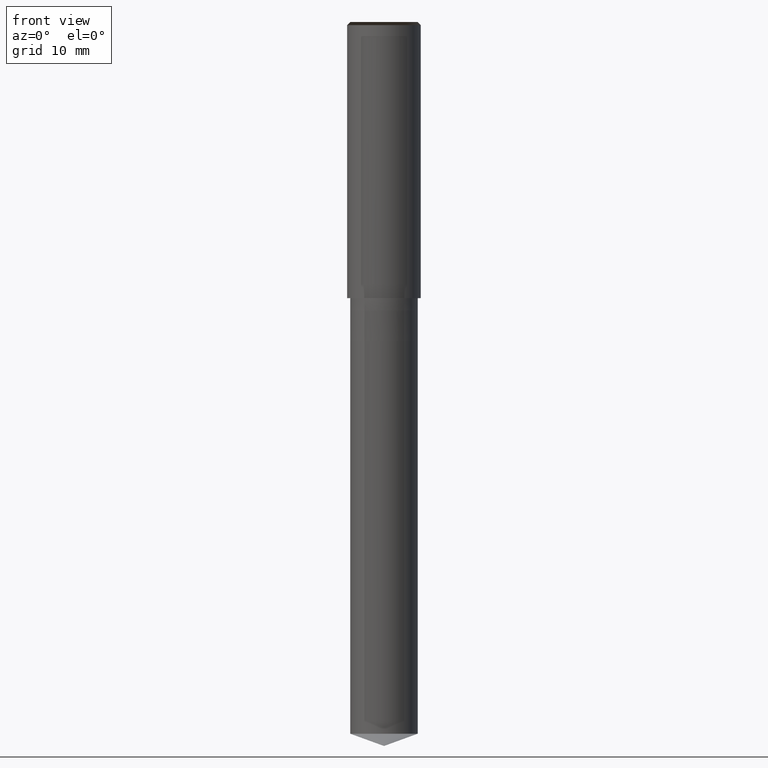
[diagram: clean part render]
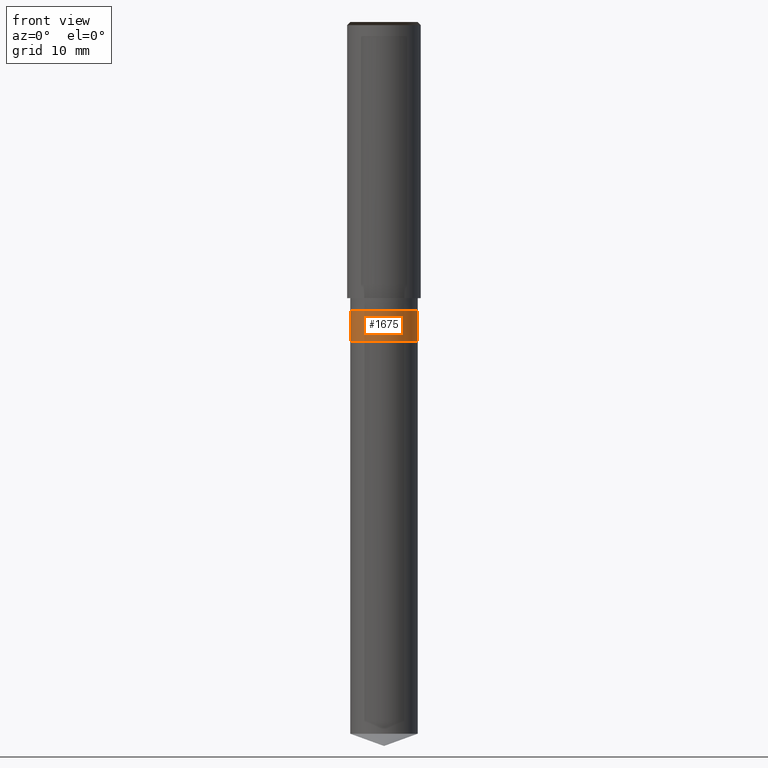
[diagram: same view with one face highlighted and labeled with its STEP entity id]
A machine part, front view. The second image highlights one B-rep face of the part: STEP entity #1675.
In plain terms, the highlighted face is a freeform B-spline surface patch.
Its self-contained STEP definition (entity closure, byte-faithful):
#1342=CARTESIAN_POINT('',(5.5,0.0,-7.0));
#1346=CARTESIAN_POINT('',(-5.5,0.0,-7.0));
#1351=CARTESIAN_POINT('',(-5.5,-5.5,-7.0));
#1352=CARTESIAN_POINT('',(0.0,-5.5,-7.0));
#1353=CARTESIAN_POINT('',(5.5,-5.5,-7.0));
#1354=CARTESIAN_POINT('',(5.5,0.0,-2.0));
#1358=CARTESIAN_POINT('',(-5.5,0.0,-2.0));
#1380=CARTESIAN_POINT('',(-5.5,-5.5,-2.0));
#1381=CARTESIAN_POINT('',(0.0,-5.5,-2.0));
#1382=CARTESIAN_POINT('',(5.5,-5.5,-2.0));
#1656=(
BOUNDED_SURFACE()
B_SPLINE_SURFACE(1,2,(
(#1346,#1351,#1352,#1353,#1342),
(#1358,#1380,#1381,#1382,#1354)
), .UNSPECIFIED.,.F.,.F.,.F.)
B_SPLINE_SURFACE_WITH_KNOTS((2,2),(3,2,3),(
0.0,1.0),(
0.0,0.5,1.0), .UNSPECIFIED.)
GEOMETRIC_REPRESENTATION_ITEM()
RATIONAL_B_SPLINE_SURFACE(((1.0,0.707106781187,1.0,0.707106781187,1.0),
(1.0,0.707106781187,1.0,0.707106781187,1.0)
))
REPRESENTATION_ITEM('')
SURFACE()
);
#1657=(
BOUNDED_CURVE()
B_SPLINE_CURVE(2,(#1342,#1353,#1352,#1351,#1346),.UNSPECIFIED.,.F.,.F.)
B_SPLINE_CURVE_WITH_KNOTS((3,2,3),
(0.0,0.5,1.0),.UNSPECIFIED.)
CURVE()
GEOMETRIC_REPRESENTATION_ITEM()
RATIONAL_B_SPLINE_CURVE((1.0,0.707106781187,1.0,0.707106781187,1.0))
REPRESENTATION_ITEM('')
);
#1658=(
BOUNDED_CURVE()
B_SPLINE_CURVE(1,(#1346,#1358),.UNSPECIFIED.,.F.,.F.)
B_SPLINE_CURVE_WITH_KNOTS((2,2),
(0.0,1.0),.UNSPECIFIED.)
CURVE()
GEOMETRIC_REPRESENTATION_ITEM()
RATIONAL_B_SPLINE_CURVE((1.0,1.0))
REPRESENTATION_ITEM('')
);
#1659=(
BOUNDED_CURVE()
B_SPLINE_CURVE(2,(#1358,#1380,#1381,#1382,#1354),.UNSPECIFIED.,.F.,.F.)
B_SPLINE_CURVE_WITH_KNOTS((3,2,3),
(0.0,0.5,1.0),.UNSPECIFIED.)
CURVE()
GEOMETRIC_REPRESENTATION_ITEM()
RATIONAL_B_SPLINE_CURVE((1.0,0.707106781187,1.0,0.707106781187,1.0))
REPRESENTATION_ITEM('')
);
#1660=(
BOUNDED_CURVE()
B_SPLINE_CURVE(1,(#1354,#1342),.UNSPECIFIED.,.F.,.F.)
B_SPLINE_CURVE_WITH_KNOTS((2,2),
(0.0,1.0),.UNSPECIFIED.)
CURVE()
GEOMETRIC_REPRESENTATION_ITEM()
RATIONAL_B_SPLINE_CURVE((1.0,1.0))
REPRESENTATION_ITEM('')
);
#1661=VERTEX_POINT('',#1342);
#1662=VERTEX_POINT('',#1346);
#1663=VERTEX_POINT('',#1354);
#1664=VERTEX_POINT('',#1358);
#1665=EDGE_CURVE('',#1661,#1662,#1657,.T.);
#1666=EDGE_CURVE('',#1662,#1664,#1658,.T.);
#1667=EDGE_CURVE('',#1664,#1663,#1659,.T.);
#1668=EDGE_CURVE('',#1663,#1661,#1660,.T.);
#1669=ORIENTED_EDGE('',*,*,#1665,.T.);
#1670=ORIENTED_EDGE('',*,*,#1666,.T.);
#1671=ORIENTED_EDGE('',*,*,#1667,.T.);
#1672=ORIENTED_EDGE('',*,*,#1668,.T.);
#1673=EDGE_LOOP('',(#1669,#1670,#1671,#1672));
#1674=FACE_OUTER_BOUND('',#1673,.T.);
#1675=ADVANCED_FACE('',(#1674),#1656,.T.);